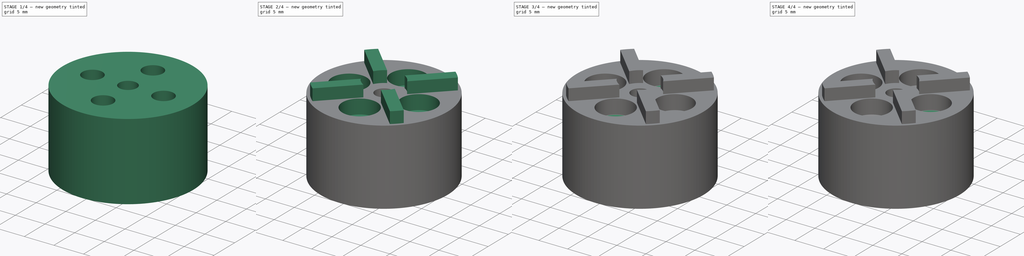
[diagram: build sequence overview — one tinted view per stage of 4, left to right]
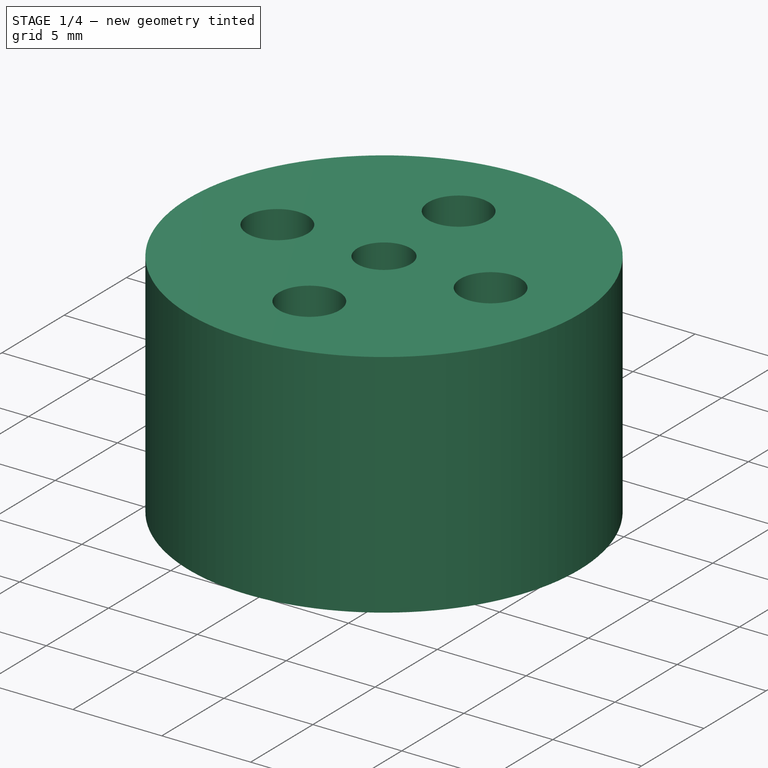
[diagram: stage 1 of 4 — iso view after this stage's code; geometry added in this stage tinted green]
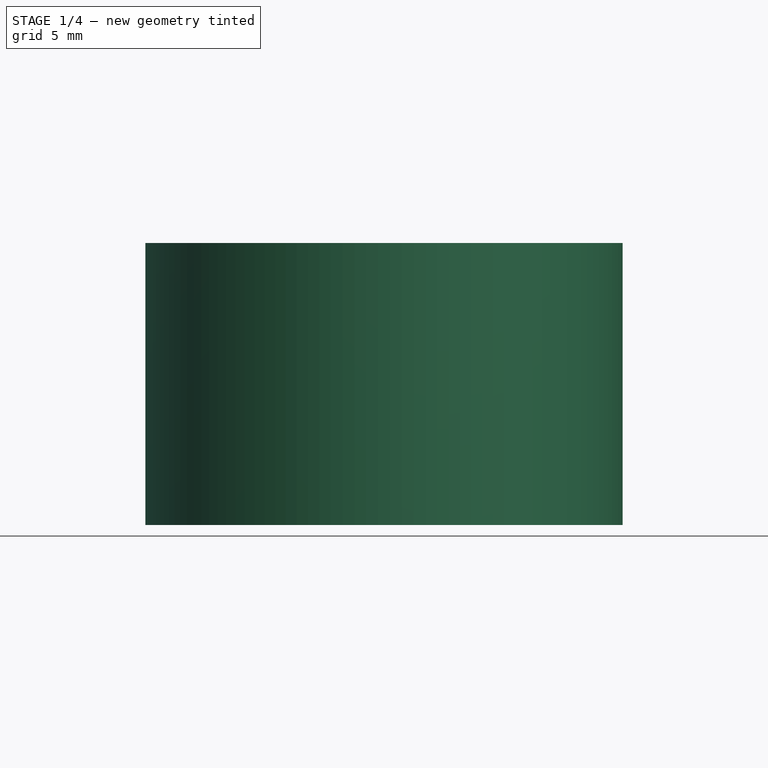
[diagram: stage 1 of 4 — front view after this stage's code; geometry added in this stage tinted green]
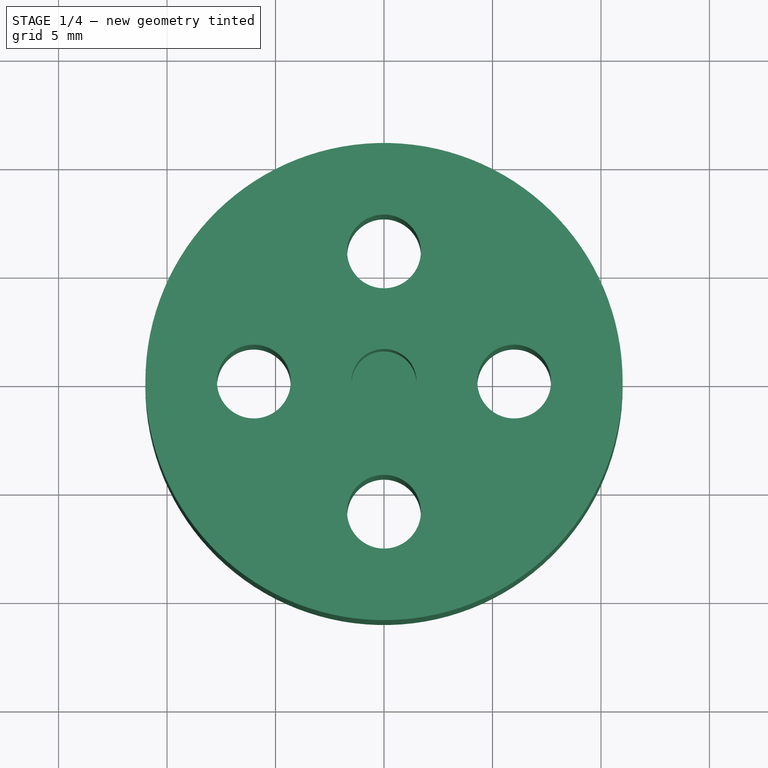
[diagram: stage 1 of 4 — top view after this stage's code; geometry added in this stage tinted green]
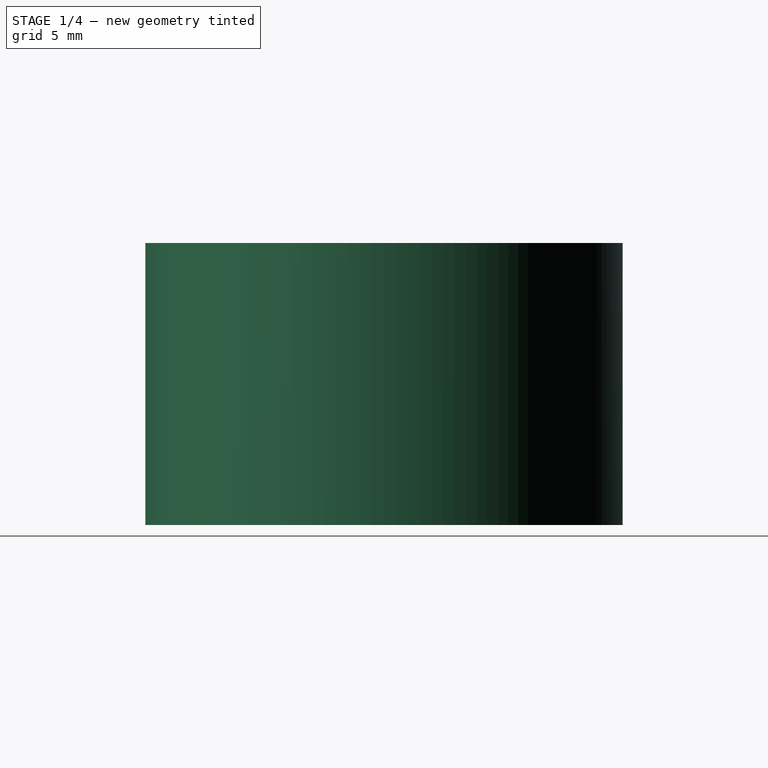
[diagram: stage 1 of 4 — right view after this stage's code; geometry added in this stage tinted green]
FCSTD DOCUMENT  (FreeCAD 0.16R6705 (Git))
Label: MotorAdaptor
License: All rights reserved
LicenseURL: http://en.wikipedia.org/wiki/All_rights_reserved
objects: Sketcher::SketchObject×5, PartDesign::Chamfer×4, PartDesign::Pocket×3, PartDesign::Pad×2
note: 19 computed .brp shape members not serialized (recipe doc carries the construction recipe); baked Part::Feature solids carry a one-line shape summary decoded from their .brp

FEATURE [Sketcher::SketchObject] Sketch  label="Base"
  sketch-geometry (18):
    g0: Circle CenterX=0 CenterY=0 CenterZ=0 NormalX=0 NormalY=0 NormalZ=1 Radius=11
    g1: Circle CenterX=0 CenterY=6 CenterZ=0 NormalX=0 NormalY=0 NormalZ=1 Radius=1.7
    g2: Circle CenterX=-6 CenterY=0 CenterZ=0 NormalX=0 NormalY=0 NormalZ=1 Radius=1.7
    g3: Circle CenterX=6 CenterY=0 CenterZ=0 NormalX=0 NormalY=0 NormalZ=1 Radius=1.7
    g4: Circle CenterX=0 CenterY=-6 CenterZ=0 NormalX=0 NormalY=0 NormalZ=1 Radius=1.7
    g5: Circle [constr] CenterX=0 CenterY=0 CenterZ=0 NormalX=0 NormalY=0 NormalZ=1 Radius=6
    g6: Circle [constr] CenterX=0 CenterY=0 CenterZ=0 NormalX=0 NormalY=0 NormalZ=1 Radius=2.2
    g7: LineSegment [constr] StartX=4.94975 StartY=9.33381 StartZ=0 EndX=9.33381 EndY=4.94975 EndZ=0
    g8: LineSegment [constr] StartX=4.94975 StartY=9.33381 StartZ=0 EndX=3.3234 EndY=7.70746 EndZ=0
    g9: LineSegment [constr] StartX=9.33381 StartY=4.94975 StartZ=0 EndX=7.70746 EndY=3.3234 EndZ=0
    g10: LineSegment [constr] StartX=3.3234 StartY=7.70746 StartZ=0 EndX=7.70746 EndY=3.3234 EndZ=0
    g11: LineSegment [constr] StartX=0 StartY=0 StartZ=0 EndX=7.77817 EndY=7.77817 EndZ=0
    g12: GeomPoint [constr] X=5.51543 Y=5.51543 Z=0
    g13: GeomPoint [constr] X=7.14178 Y=7.14178 Z=0
    g14: LineSegment [constr] StartX=-7.70746 StartY=-3.3234 StartZ=0 EndX=-3.3234 EndY=-7.70746 EndZ=0
    g15: LineSegment [constr] StartX=-9.33381 StartY=-4.94975 StartZ=0 EndX=-4.94975 EndY=-9.33381 EndZ=0
    g16: LineSegment [constr] StartX=-7.70746 StartY=-3.3234 StartZ=0 EndX=-9.33381 EndY=-4.94975 EndZ=0
    g17: LineSegment [constr] StartX=-4.94975 StartY=-9.33381 StartZ=0 EndX=-3.3234 EndY=-7.70746 EndZ=0
  constraints (45):
    c: Coincident(g0,g-1)
    c: Radius(g0) = 11
    c: PointOnObject(g2,g-1)
    c: PointOnObject(g3,g-1)
    c: PointOnObject(g1,g-2)
    c: PointOnObject(g4,g-2)
    c: Radius(g4) = 1.7
    c: Equal(g4,g3)
    c: Equal(g4,g1)
    c: Equal(g4,g2)
    c: Coincident(g5,g-1)
    c: Radius(g5) = 6
    c: PointOnObject(g1,g5)
    c: PointOnObject(g2,g5)
    c: PointOnObject(g4,g5)
    c: PointOnObject(g3,g5)
    c: Coincident(g6,g-1)
    c: Radius(g6) = 2.2
    c: Coincident(g8,g7)
    c: Coincident(g9,g7)
    c: Coincident(g10,g8)
    c: Coincident(g10,g9)
    c: Angle(g9,g10) = 1.5708
    c: Angle(g8,g7) = 1.5708
    c: Angle(g10,g8) = 1.5708
    c: Distance(g7,g7) = 6.2
    c: Distance(g9,g7) = 2.3
    c: Coincident(g11,g-1)
    c: PointOnObject(g11,g0)
    c: PointOnObject(g12,g10)
    c: PointOnObject(g12,g11)
    c: Symmetric(g9,g8,g12)
    c: PointOnObject(g13,g11)
    c: PointOnObject(g13,g7)
    c: Symmetric(g7,g7,g13)
    c: Angle(g-1,g11) = 0.785398
    c: Distance(g-1,g12) = 7.8
    c: Coincident(g16,g14)
    c: Coincident(g16,g15)
    c: Coincident(g17,g15)
    c: Coincident(g17,g14)
    c: Symmetric(g14,g8,g-1)
    c: Symmetric(g14,g9,g-1)
    c: Symmetric(g15,g7,g-1)
    c: Symmetric(g15,g7,g-1)
FEATURE [PartDesign::Pad] Pad
  Length = 13
  Length2 = 100
  Sketch = -> Sketch
  Type = 0
FEATURE [Sketcher::SketchObject] Sketch003  label="CentralScrewHole"
  Placement = pos=(0,0,13) rot=(0,0,1;0rad)
  Support = -> Pad [Face7]
  sketch-geometry (6):
    g0: Circle [constr] CenterX=0 CenterY=6 CenterZ=0 NormalX=0 NormalY=0 NormalZ=1 Radius=2.7
    g1: Circle [constr] CenterX=0 CenterY=0 CenterZ=0 NormalX=0 NormalY=0 NormalZ=1 Radius=6
    g2: Circle [constr] CenterX=-6 CenterY=0 CenterZ=0 NormalX=0 NormalY=0 NormalZ=1 Radius=2.7
    g3: Circle [constr] CenterX=0 CenterY=-6 CenterZ=0 NormalX=0 NormalY=0 NormalZ=1 Radius=2.7
    g4: Circle [constr] CenterX=6 CenterY=0 CenterZ=0 NormalX=0 NormalY=0 NormalZ=1 Radius=2.7
    g5: Circle CenterX=0 CenterY=0 CenterZ=0 NormalX=0 NormalY=0 NormalZ=1 Radius=1.5
  constraints (16):
    c: PointOnObject(g0,g-2)
    c: Coincident(g1,g-1)
    c: Radius(g1) = 6
    c: PointOnObject(g0,g1)
    c: PointOnObject(g2,g1)
    c: PointOnObject(g2,g-1)
    c: PointOnObject(g3,g1)
    c: PointOnObject(g3,g-2)
    c: PointOnObject(g4,g1)
    c: PointOnObject(g4,g-1)
    c: Equal(g4,g3)
    c: Radius(g2) = 2.7
    c: Equal(g2,g3)
    c: Equal(g2,g0)
    c: Coincident(g5,g-1)
    c: Radius(g5) = 1.5
FEATURE [PartDesign::Pocket] Pocket001
  Length = 6.5
  Sketch = -> Sketch003
  Type = 0
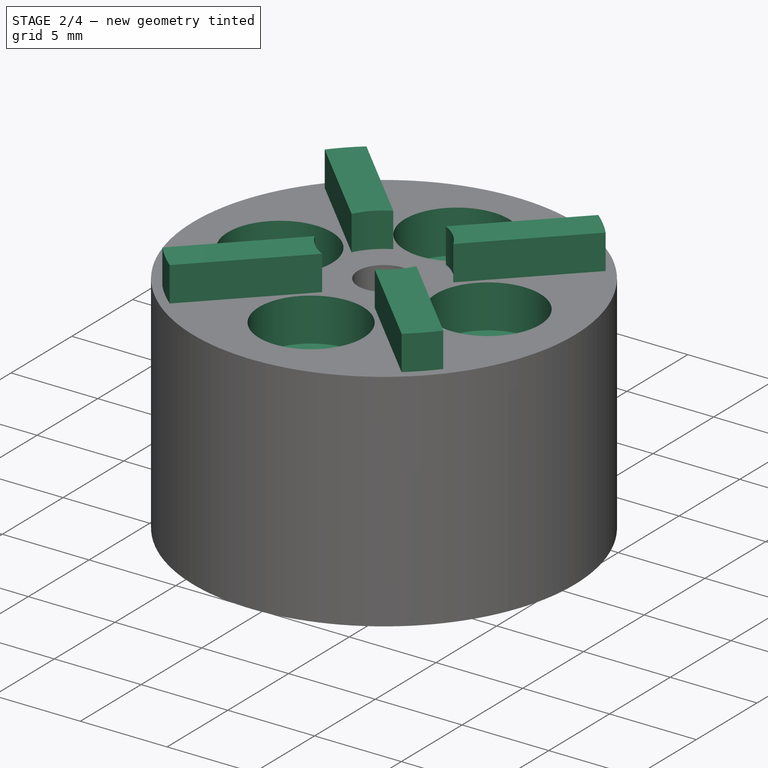
[diagram: stage 2 of 4 — iso view after this stage's code; geometry added in this stage tinted green]
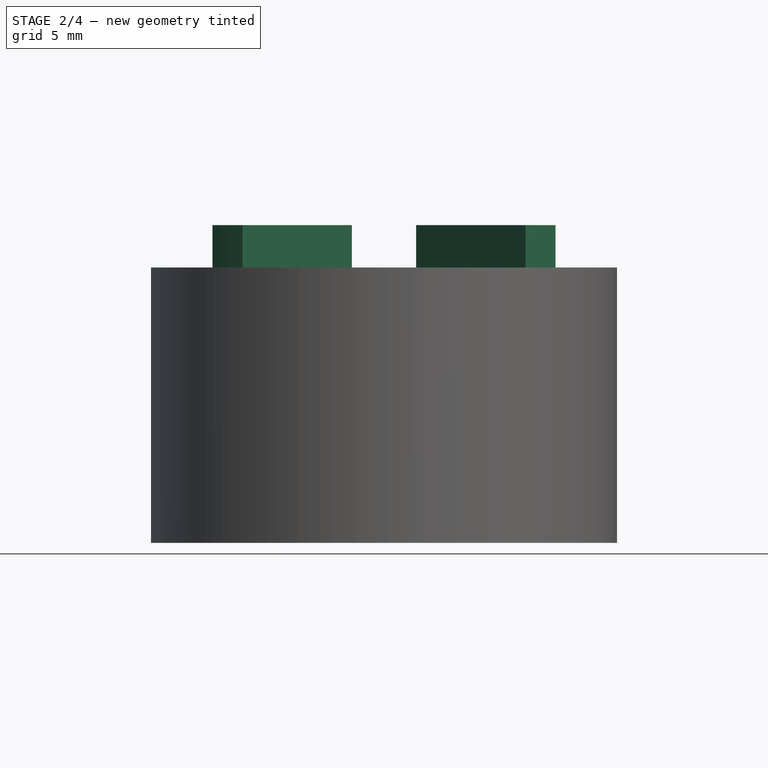
[diagram: stage 2 of 4 — front view after this stage's code; geometry added in this stage tinted green]
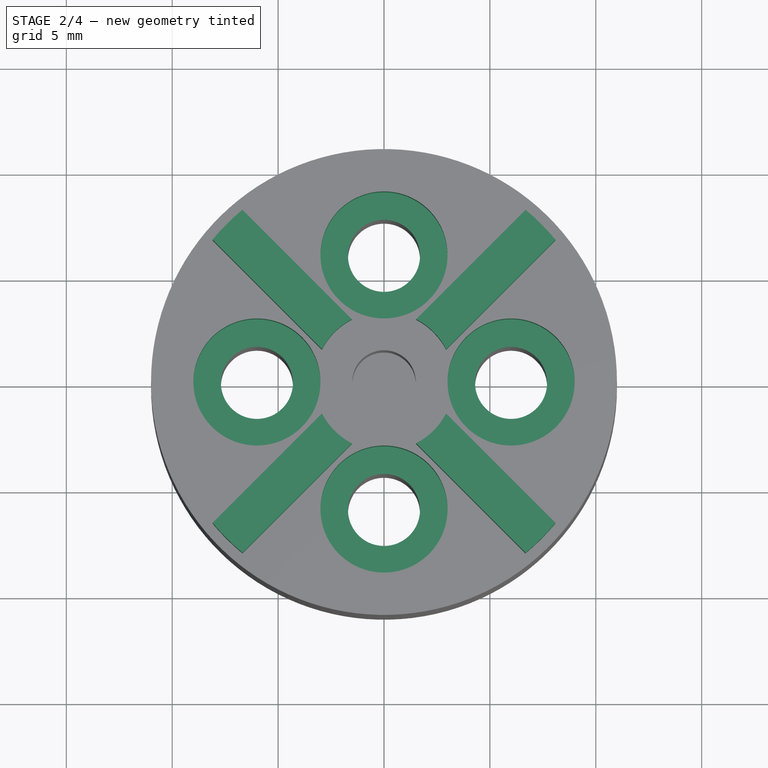
[diagram: stage 2 of 4 — top view after this stage's code; geometry added in this stage tinted green]
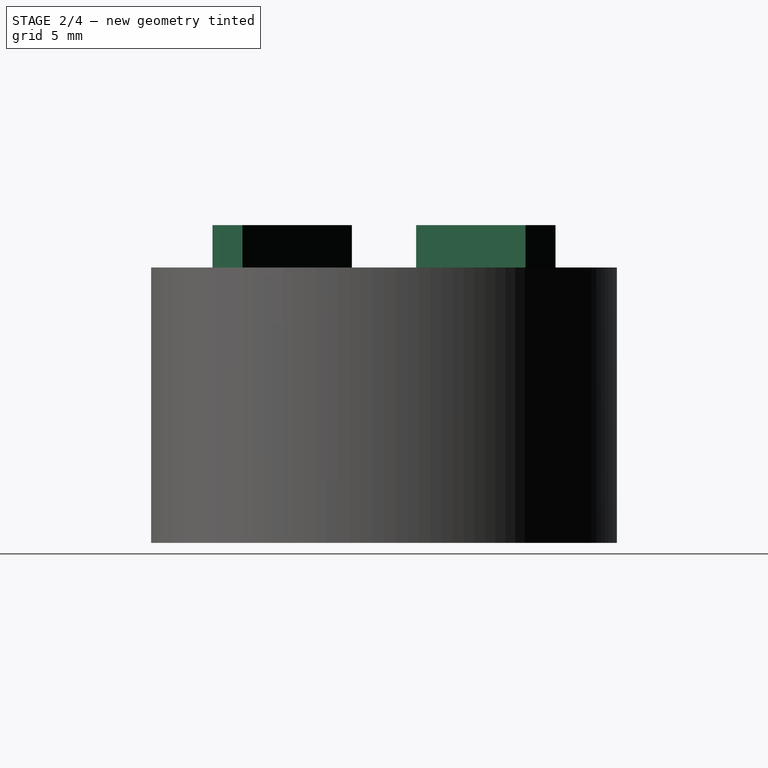
[diagram: stage 2 of 4 — right view after this stage's code; geometry added in this stage tinted green]
FEATURE [Sketcher::SketchObject] Sketch004  label="RotationLock"
  Placement = pos=(0,0,13) rot=(0,0,1;0rad)
  Support = -> Pocket001 [Face3]
  sketch-geometry (27):
    g0: Circle [constr] CenterX=0 CenterY=0 CenterZ=0 NormalX=0 NormalY=0 NormalZ=1 Radius=10.5
    g1: Circle [constr] CenterX=0 CenterY=6 CenterZ=0 NormalX=0 NormalY=0 NormalZ=1 Radius=1.7
    g2: Circle [constr] CenterX=-6 CenterY=0 CenterZ=0 NormalX=0 NormalY=0 NormalZ=1 Radius=1.7
    g3: Circle [constr] CenterX=6 CenterY=0 CenterZ=0 NormalX=0 NormalY=0 NormalZ=1 Radius=1.7
    g4: Circle [constr] CenterX=0 CenterY=-6 CenterZ=0 NormalX=0 NormalY=0 NormalZ=1 Radius=1.7
    g5: Circle [constr] CenterX=0 CenterY=0 CenterZ=0 NormalX=0 NormalY=0 NormalZ=1 Radius=6
    g6: LineSegment [constr] StartX=0 StartY=0 StartZ=0 EndX=7.42462 EndY=7.42462 EndZ=0
    g7: Circle [constr] CenterX=0 CenterY=0 CenterZ=0 NormalX=0 NormalY=0 NormalZ=1 Radius=3.3
    g8: LineSegment StartX=-8.09798 StartY=6.68377 StartZ=0 EndX=-2.93084 EndY=1.51663 EndZ=0
    g9: LineSegment StartX=-6.68377 StartY=8.09798 StartZ=0 EndX=-1.51663 EndY=2.93084 EndZ=0
    g10: LineSegment [constr] StartX=-7.42462 StartY=7.42462 StartZ=0 EndX=7.42462 EndY=-7.42462 EndZ=0
    g11: ArcOfCircle CenterX=0 CenterY=0 CenterZ=0 NormalX=0 NormalY=0 NormalZ=1 Radius=10.5 StartAngle=2.26081 EndAngle=2.45158
    g12: ArcOfCircle CenterX=0 CenterY=0 CenterZ=0 NormalX=0 NormalY=0 NormalZ=1 Radius=3.3 StartAngle=2.04832 EndAngle=2.66407
    g13: LineSegment StartX=2.93084 StartY=-1.51663 StartZ=0 EndX=8.09798 EndY=-6.68377 EndZ=0
    g14: LineSegment StartX=1.51663 StartY=-2.93084 StartZ=0 EndX=6.68377 EndY=-8.09798 EndZ=0
    g15: ArcOfCircle CenterX=0 CenterY=0 CenterZ=0 NormalX=0 NormalY=0 NormalZ=1 Radius=3.3 StartAngle=5.18992 EndAngle=5.80566
    g16: ArcOfCircle CenterX=0 CenterY=0 CenterZ=0 NormalX=0 NormalY=0 NormalZ=1 Radius=10.5 StartAngle=5.4024 EndAngle=5.59317
    g17: ArcOfCircle CenterX=0 CenterY=0 CenterZ=0 NormalX=0 NormalY=0 NormalZ=1 Radius=10.5 StartAngle=0.690016 EndAngle=0.880781
    g18: ArcOfCircle CenterX=0 CenterY=0 CenterZ=0 NormalX=0 NormalY=0 NormalZ=1 Radius=3.3 StartAngle=0.477527 EndAngle=1.09327
    g19: ArcOfCircle CenterX=0 CenterY=0 CenterZ=0 NormalX=0 NormalY=0 NormalZ=1 Radius=3.3 StartAngle=3.61912 EndAngle=4.23486
    g20: ArcOfCircle CenterX=0 CenterY=0 CenterZ=0 NormalX=0 NormalY=0 NormalZ=1 Radius=10.5 StartAngle=3.83161 EndAngle=4.02237
    g21: LineSegment StartX=-8.09798 StartY=-6.68377 StartZ=0 EndX=-2.93084 EndY=-1.51663 EndZ=0
    g22: LineSegment StartX=-1.51663 StartY=-2.93084 StartZ=0 EndX=-6.68377 EndY=-8.09798 EndZ=0
    g23: LineSegment StartX=1.51663 StartY=2.93084 StartZ=0 EndX=6.68377 EndY=8.09798 EndZ=0
    g24: LineSegment StartX=8.09798 StartY=6.68377 StartZ=0 EndX=2.93084 EndY=1.51663 EndZ=0
    g25: LineSegment [constr] StartX=-2.93084 StartY=-1.51663 StartZ=0 EndX=1.51663 EndY=2.93084 EndZ=0
    g26: LineSegment [constr] StartX=-1.51663 StartY=-2.93084 StartZ=0 EndX=2.93084 EndY=1.51663 EndZ=0
  constraints (74):
    c: Coincident(g0,g-1)
    c: Radius(g0) = 10.5
    c: PointOnObject(g2,g-1)
    c: PointOnObject(g3,g-1)
    c: PointOnObject(g1,g-2)
    c: PointOnObject(g4,g-2)
    c: Radius(g4) = 1.7
    c: Equal(g4,g3)
    c: Equal(g4,g1)
    c: Equal(g4,g2)
    c: Coincident(g5,g-1)
    c: Radius(g5) = 6
    c: PointOnObject(g1,g5)
    c: PointOnObject(g2,g5)
    c: PointOnObject(g4,g5)
    c: PointOnObject(g3,g5)
    c: Coincident(g6,g-1)
    c: PointOnObject(g6,g0)
    c: Angle(g-1,g6) = 0.785398
    c: Coincident(g7,g-1)
    c: Radius(g7) = 3.3
    c: PointOnObject(g10,g0)
    c: PointOnObject(g10,g0)
    c: Angle(g6,g10) = 1.5708
    c: Coincident(g11,g-1)
    c: Coincident(g11,g8)
    c: Coincident(g11,g9)
    c: Coincident(g12,g-1)
    c: Coincident(g12,g8)
    c: Coincident(g12,g9)
    c: Symmetric(g8,g9,g10)
    c: Symmetric(g8,g9,g10)
    c: Parallel(g9,g8)
    c: Distance(g8,g9) = 2
    c: PointOnObject(g9,g0)
    c: PointOnObject(g9,g7)
    c: Coincident(g15,g-1)
    c: Coincident(g15,g13)
    c: Coincident(g15,g14)
    c: Coincident(g16,g-1)
    c: Coincident(g16,g13)
    c: Coincident(g16,g14)
    c: Symmetric(g13,g8,g-1)
    c: Symmetric(g14,g9,g-1)
    c: Symmetric(g14,g9,g-1)
    c: Symmetric(g13,g8,g-1)
    c: Coincident(g17,g-1)
    c: Coincident(g18,g-1)
    c: Coincident(g19,g-1)
    c: Coincident(g20,g-1)
    c: Coincident(g21,g20)
    c: Coincident(g21,g19)
    c: Coincident(g22,g20)
    c: Coincident(g22,g19)
    c: Coincident(g23,g18)
    c: Coincident(g23,g17)
    c: Coincident(g24,g18)
    c: Parallel(g24,g6)
    c: Parallel(g6,g23)
    c: Parallel(g22,g24)
    c: Parallel(g23,g21)
    c: Coincident(g17,g24)
    c: Symmetric(g18,g18,g6)
    c: Distance(g17,g17) = 2
    c: Coincident(g25,g19)
    c: Coincident(g25,g18)
    c: Coincident(g26,g18)
    c: Parallel(g26,g22)
    c: Parallel(g25,g21)
    c: Coincident(g26,g19)
    c: PointOnObject(g19,g7)
    c: PointOnObject(g18,g7)
    c: PointOnObject(g17,g0)
    c: PointOnObject(g20,g0)
FEATURE [PartDesign::Pad] Pad001
  Length = 2
  Length2 = 100
  Sketch = -> Sketch004
  Type = 0
FEATURE [Sketcher::SketchObject] Sketch006  label="ChamferResess"
  Placement = pos=(0,0,13) rot=(0,0,1;0rad)
  Support = -> Pad001 [Face3]
  sketch-geometry (18):
    g0: Circle [constr] CenterX=0 CenterY=0 CenterZ=0 NormalX=0 NormalY=0 NormalZ=1 Radius=12
    g1: Circle CenterX=0 CenterY=6 CenterZ=0 NormalX=0 NormalY=0 NormalZ=1 Radius=3
    g2: Circle CenterX=-6 CenterY=0 CenterZ=0 NormalX=0 NormalY=0 NormalZ=1 Radius=3
    g3: Circle CenterX=6 CenterY=0 CenterZ=0 NormalX=0 NormalY=0 NormalZ=1 Radius=3
    g4: Circle CenterX=0 CenterY=-6 CenterZ=0 NormalX=0 NormalY=0 NormalZ=1 Radius=3
    g5: Circle [constr] CenterX=0 CenterY=0 CenterZ=0 NormalX=0 NormalY=0 NormalZ=1 Radius=6
    g6: Circle [constr] CenterX=0 CenterY=0 CenterZ=0 NormalX=0 NormalY=0 NormalZ=1 Radius=2.2
    g7: LineSegment [constr] StartX=4.94975 StartY=9.33381 StartZ=0 EndX=9.33381 EndY=4.94975 EndZ=0
    g8: LineSegment [constr] StartX=4.94975 StartY=9.33381 StartZ=0 EndX=3.3234 EndY=7.70746 EndZ=0
    g9: LineSegment [constr] StartX=9.33381 StartY=4.94975 StartZ=0 EndX=7.70746 EndY=3.3234 EndZ=0
    g10: LineSegment [constr] StartX=3.3234 StartY=7.70746 StartZ=0 EndX=7.70746 EndY=3.3234 EndZ=0
    g11: LineSegment [constr] StartX=0 StartY=0 StartZ=0 EndX=8.48528 EndY=8.48528 EndZ=0
    g12: GeomPoint [constr] X=5.51543 Y=5.51543 Z=0
    g13: GeomPoint [constr] X=7.14178 Y=7.14178 Z=0
    g14: LineSegment [constr] StartX=-7.70746 StartY=-3.3234 StartZ=0 EndX=-3.3234 EndY=-7.70746 EndZ=0
    g15: LineSegment [constr] StartX=-9.33381 StartY=-4.94975 StartZ=0 EndX=-4.94975 EndY=-9.33381 EndZ=0
    g16: LineSegment [constr] StartX=-7.70746 StartY=-3.3234 StartZ=0 EndX=-9.33381 EndY=-4.94975 EndZ=0
    g17: LineSegment [constr] StartX=-4.94975 StartY=-9.33381 StartZ=0 EndX=-3.3234 EndY=-7.70746 EndZ=0
  constraints (45):
    c: Coincident(g0,g-1)
    c: Radius(g0) = 12
    c: PointOnObject(g2,g-1)
    c: PointOnObject(g3,g-1)
    c: PointOnObject(g1,g-2)
    c: PointOnObject(g4,g-2)
    c: Radius(g4) = 3
    c: Equal(g4,g3)
    c: Equal(g4,g1)
    c: Equal(g4,g2)
    c: Coincident(g5,g-1)
    c: Radius(g5) = 6
    c: PointOnObject(g1,g5)
    c: PointOnObject(g2,g5)
    c: PointOnObject(g4,g5)
    c: PointOnObject(g3,g5)
    c: Coincident(g6,g-1)
    c: Radius(g6) = 2.2
    c: Coincident(g8,g7)
    c: Coincident(g9,g7)
    c: Coincident(g10,g8)
    c: Coincident(g10,g9)
    c: Angle(g9,g10) = 1.5708
    c: Angle(g8,g7) = 1.5708
    c: Angle(g10,g8) = 1.5708
    c: Distance(g7,g7) = 6.2
    c: Distance(g9,g7) = 2.3
    c: Coincident(g11,g-1)
    c: PointOnObject(g11,g0)
    c: PointOnObject(g12,g10)
    c: PointOnObject(g12,g11)
    c: Symmetric(g9,g8,g12)
    c: PointOnObject(g13,g11)
    c: PointOnObject(g13,g7)
    c: Symmetric(g7,g7,g13)
    c: Angle(g-1,g11) = 0.785398
    c: Distance(g-1,g12) = 7.8
    c: Coincident(g16,g14)
    c: Coincident(g16,g15)
    c: Coincident(g17,g15)
    c: Coincident(g17,g14)
    c: Symmetric(g14,g8,g-1)
    c: Symmetric(g14,g9,g-1)
    c: Symmetric(g15,g7,g-1)
    c: Symmetric(g15,g7,g-1)
FEATURE [PartDesign::Pocket] Pocket003
  Length = 2.5
  Sketch = -> Sketch006
  Type = 0
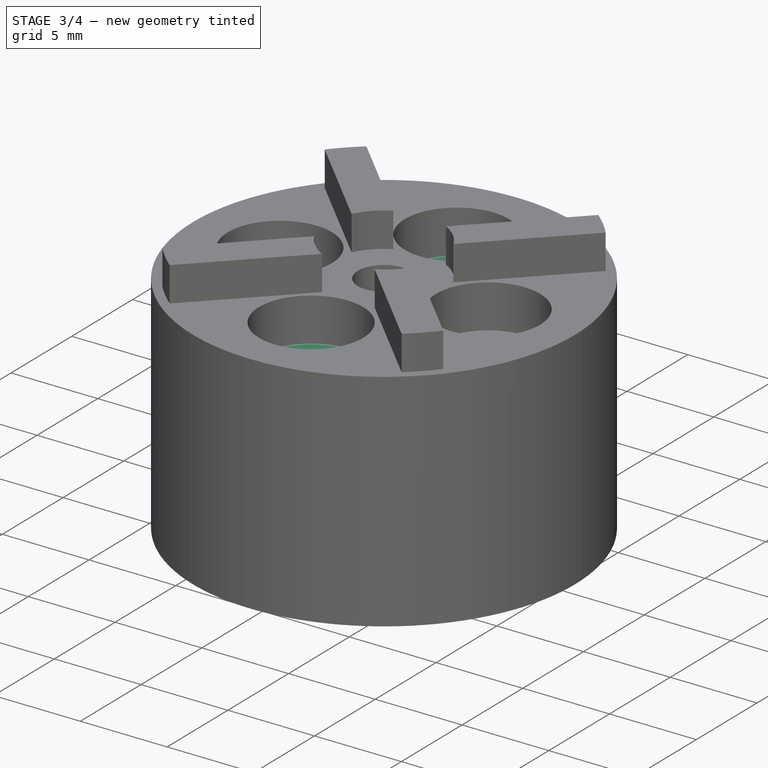
[diagram: stage 3 of 4 — iso view after this stage's code; geometry added in this stage tinted green]
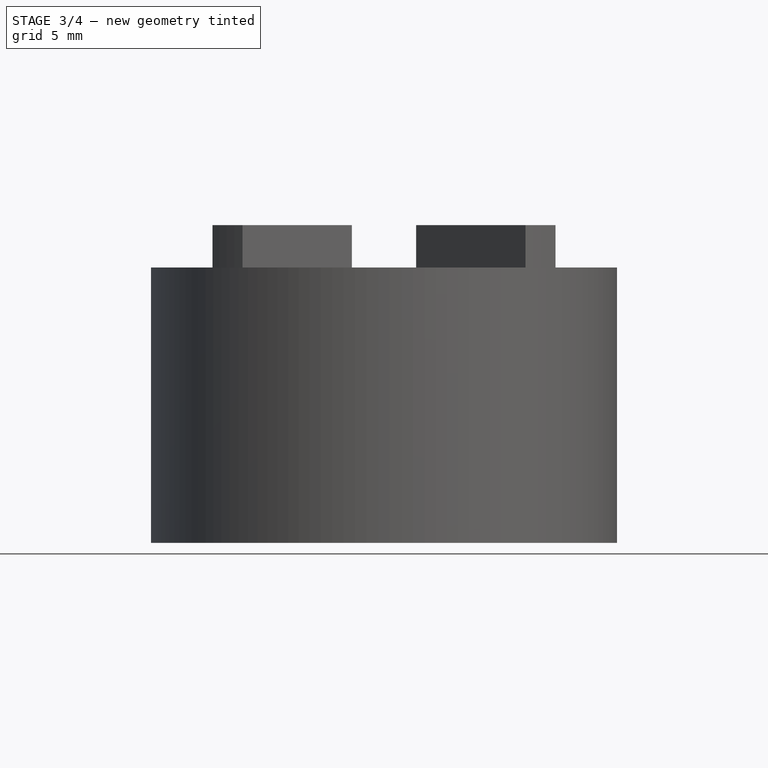
[diagram: stage 3 of 4 — front view after this stage's code; geometry added in this stage tinted green]
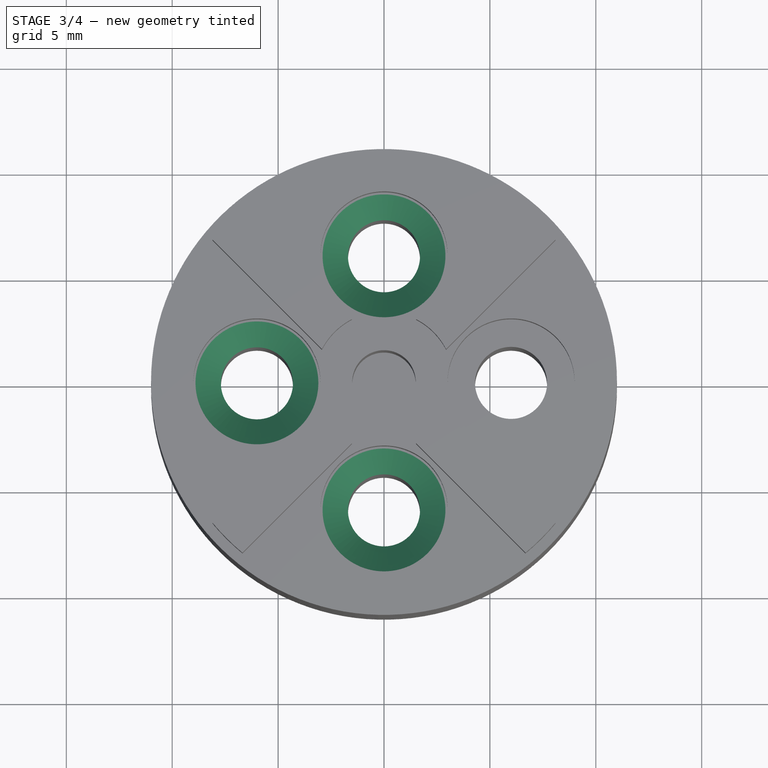
[diagram: stage 3 of 4 — top view after this stage's code; geometry added in this stage tinted green]
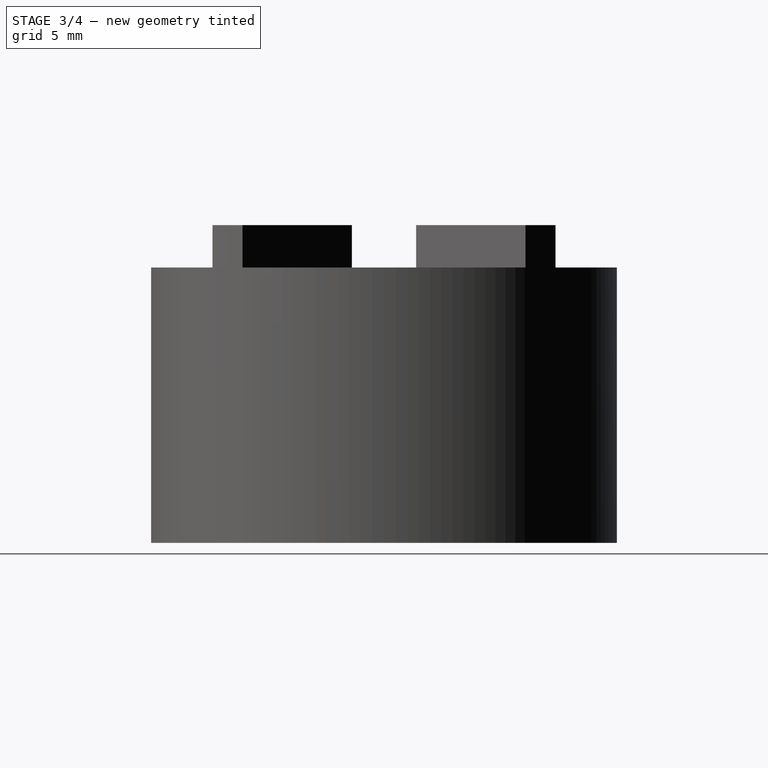
[diagram: stage 3 of 4 — right view after this stage's code; geometry added in this stage tinted green]
FEATURE [PartDesign::Chamfer] Chamfer
  Base = -> Pocket003 [Edge36]
  Size = 1.2
FEATURE [PartDesign::Chamfer] Chamfer001
  Base = -> Chamfer [Edge18]
  Size = 1.2
FEATURE [PartDesign::Chamfer] Chamfer002
  Base = -> Chamfer001 [Edge14]
  Size = 1.2
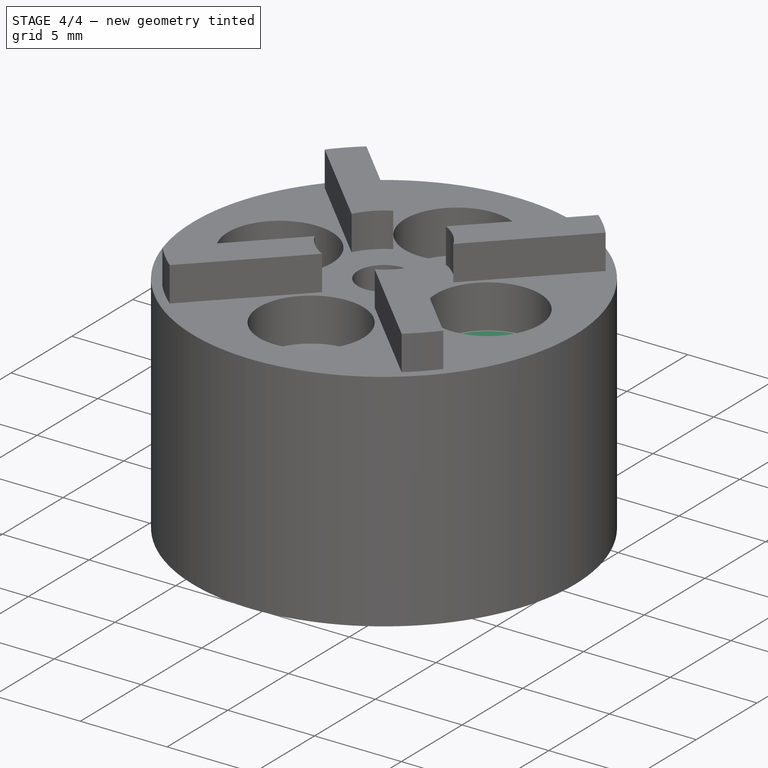
[diagram: stage 4 of 4 — iso view after this stage's code; geometry added in this stage tinted green]
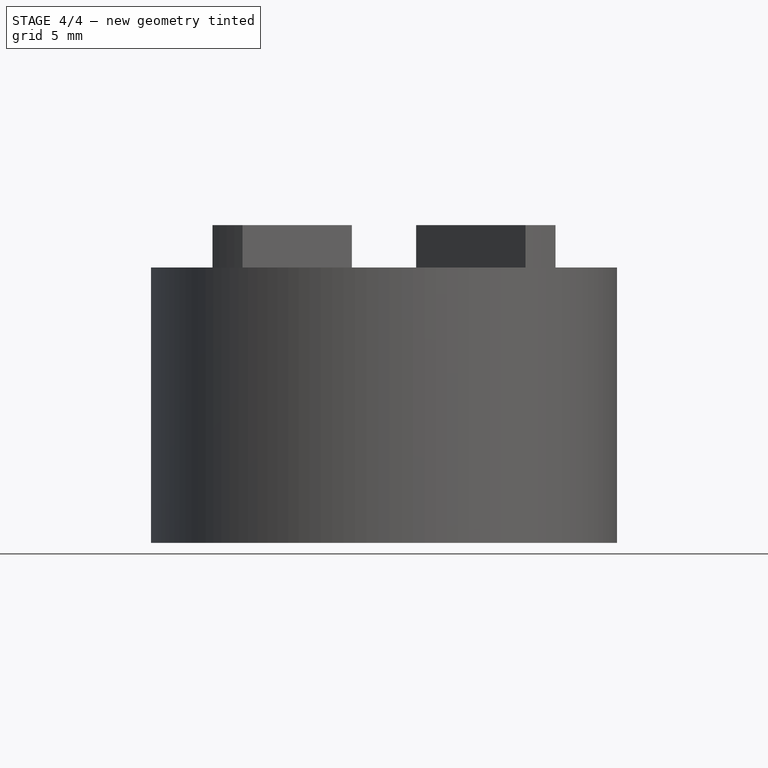
[diagram: stage 4 of 4 — front view after this stage's code; geometry added in this stage tinted green]
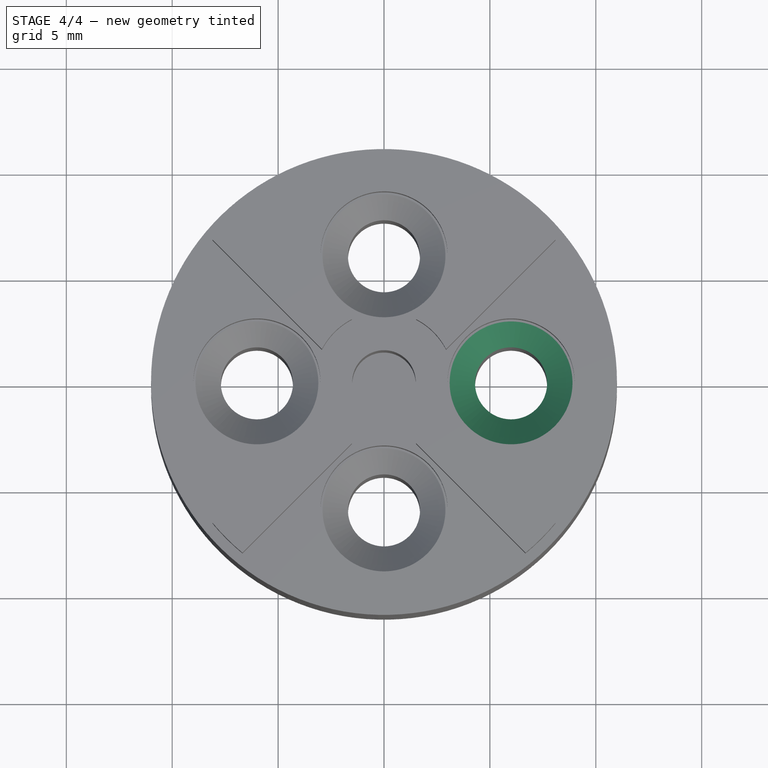
[diagram: stage 4 of 4 — top view after this stage's code; geometry added in this stage tinted green]
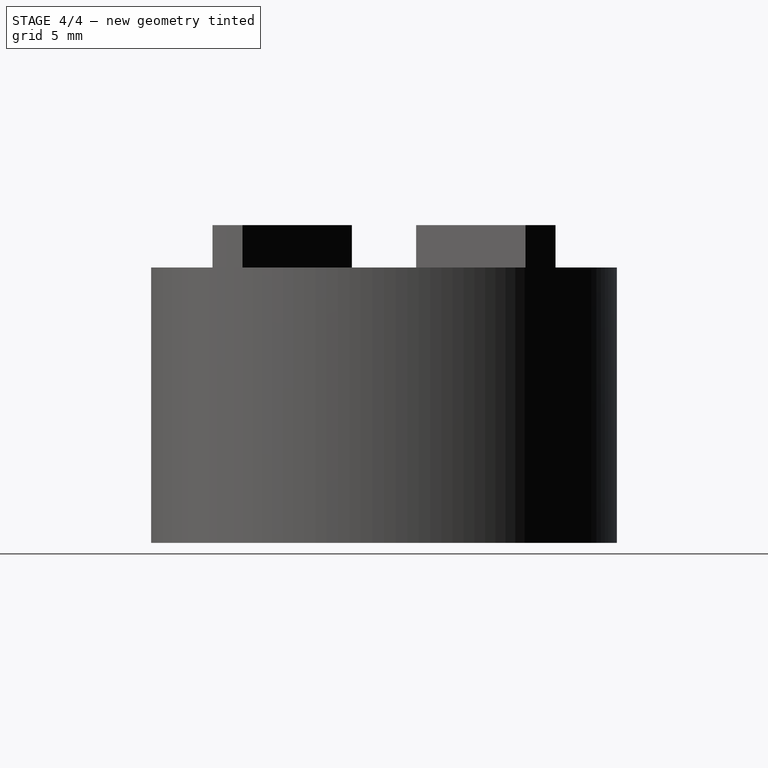
[diagram: stage 4 of 4 — right view after this stage's code; geometry added in this stage tinted green]
FEATURE [PartDesign::Chamfer] Chamfer003
  Base = -> Chamfer002 [Edge14]
  Size = 1.2
FEATURE [Sketcher::SketchObject] Sketch007  label="MotorShaft"
  Placement = pos=(0,0,0) rot=(1,0,0;3.14159rad)
  Support = -> Chamfer003 [Face3]
  sketch-geometry (1):
    g0: Circle CenterX=0 CenterY=0 CenterZ=0 NormalX=0 NormalY=0 NormalZ=1 Radius=2.2
  constraints (2):
    c: Coincident(g0,g-1)
    c: Radius(g0) = 2.2
FEATURE [PartDesign::Pocket] Pocket
  Length = 6
  Sketch = -> Sketch007
  Type = 0
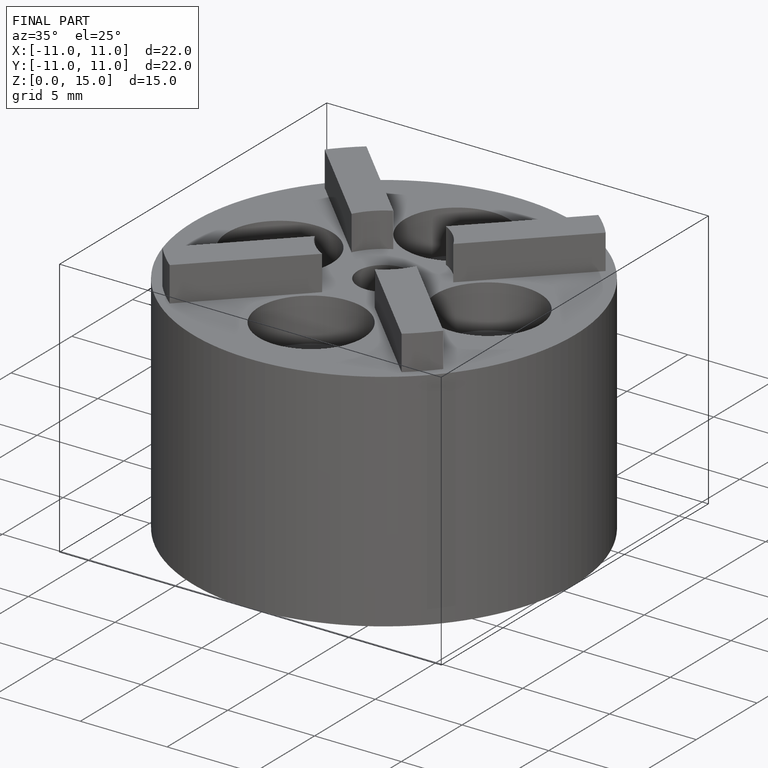
[diagram: finished part — iso view with bounding-box wireframe]
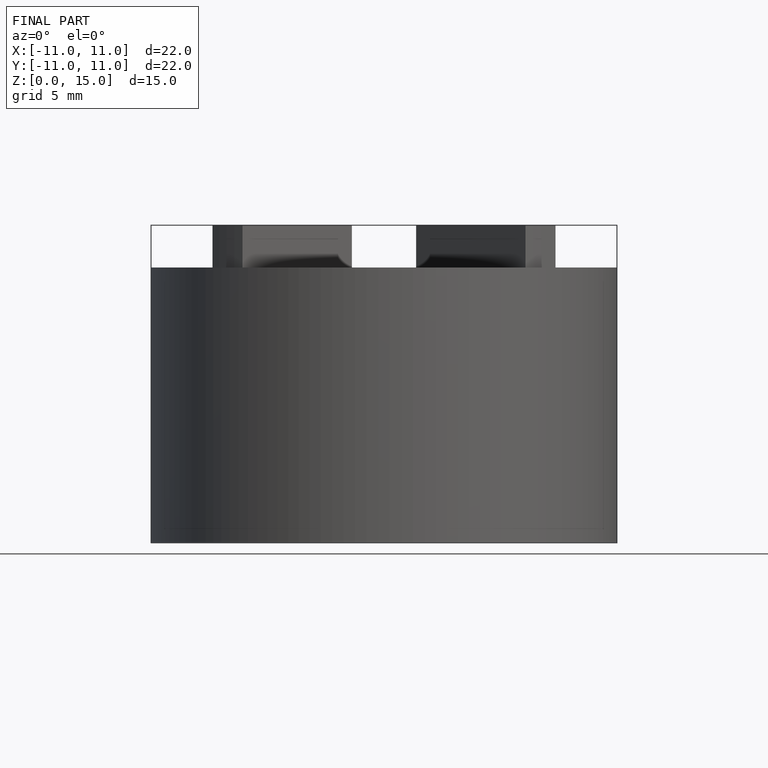
[diagram: finished part — front view with bounding-box wireframe]
